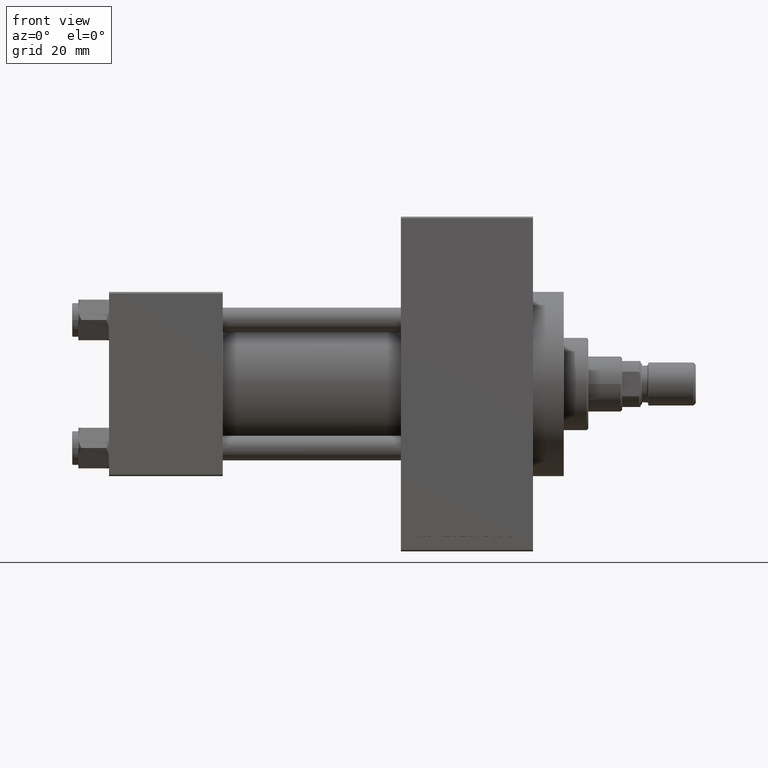
[diagram: clean part render]
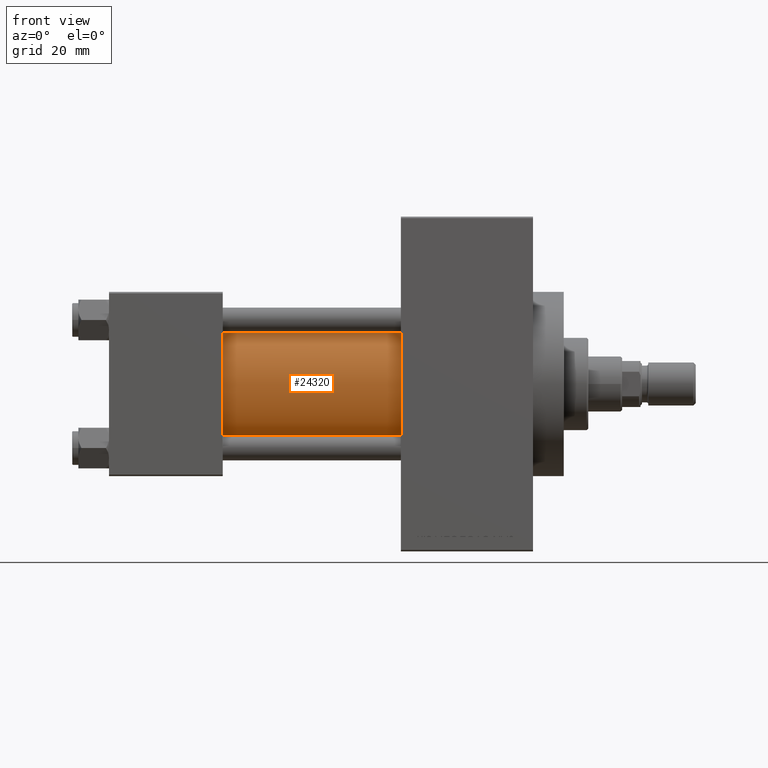
[diagram: same view with one face highlighted and labeled with its STEP entity id]
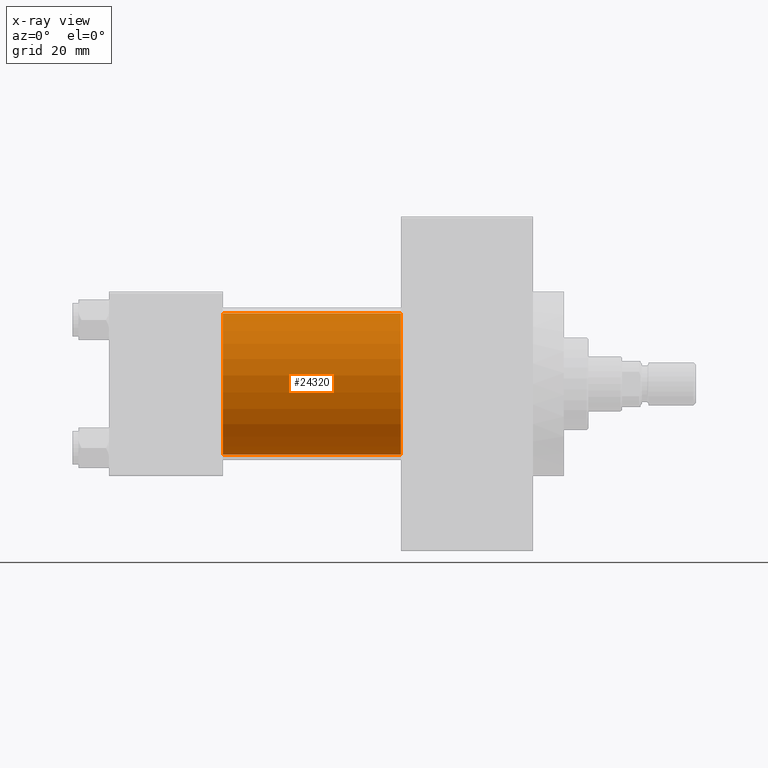
[diagram: x-ray of the same camera — body ghosted, the highlighted face saturated]
A machine part, front view. The second image highlights one B-rep face of the part: STEP entity #24320.
The next image is the same camera in x-ray: the body ghosted, the highlighted face saturated — about 0% of this face is hidden behind the body in this view.
In plain terms, the highlighted cylindrical surface (partial cylindrical patch) has radius 23 mm, axis along (-1, -0, -0).
Its self-contained STEP definition (entity closure, byte-faithful):
#343 = VERTEX_POINT ( 'NONE', #31273 ) ;
#633 = EDGE_LOOP ( 'NONE', ( #38055, #1993, #12463, #30962 ) ) ;
#1993 = ORIENTED_EDGE ( 'NONE', *, *, #26353, .F. ) ;
#2558 = EDGE_CURVE ( 'NONE', #25245, #11920, #2601, .T. ) ;
#2601 = LINE ( 'NONE', #39775, #11113 ) ;
#3130 = CARTESIAN_POINT ( 'NONE',  ( 95.00000000000000000, 2.146024240737012665E-16, -23.00000000000000000 ) ) ;
#4870 = CARTESIAN_POINT ( 'NONE',  ( 95.00000000000000000, -2.602085213965210642E-15, 23.00000000000000000 ) ) ;
#6562 = EDGE_CURVE ( 'NONE', #11920, #47039, #41299, .T. ) ;
#8769 = DIRECTION ( 'NONE',  ( 0.000000000000000000, 0.000000000000000000, 1.000000000000000000 ) ) ;
#9089 = CARTESIAN_POINT ( 'NONE',  ( 95.00000000000000000, -2.602085213965210642E-15, 0.000000000000000000 ) ) ;
#10568 = DIRECTION ( 'NONE',  ( 0.000000000000000000, 0.000000000000000000, 1.000000000000000000 ) ) ;
#11113 = VECTOR ( 'NONE', #16858, 1000.000000000000000 ) ;
#11920 = VERTEX_POINT ( 'NONE', #43727 ) ;
#12463 = ORIENTED_EDGE ( 'NONE', *, *, #2558, .T. ) ;
#13197 = EDGE_CURVE ( 'NONE', #343, #47039, #46335, .T. ) ;
#14082 = AXIS2_PLACEMENT_3D ( 'NONE', #9089, #39268, #27676 ) ;
#16858 = DIRECTION ( 'NONE',  ( -1.000000000000000000, -0.000000000000000000, -0.000000000000000000 ) ) ;
#16865 = DIRECTION ( 'NONE',  ( -1.000000000000000000, -0.000000000000000000, -0.000000000000000000 ) ) ;
#21523 = VECTOR ( 'NONE', #39111, 1000.000000000000000 ) ;
#24320 = ADVANCED_FACE ( 'NONE', ( #43640 ), #35457, .T. ) ;
#24346 = CARTESIAN_POINT ( 'NONE',  ( 95.00000000000000000, -2.602085213965210642E-15, 0.000000000000000000 ) ) ;
#25245 = VERTEX_POINT ( 'NONE', #4870 ) ;
#25592 = AXIS2_PLACEMENT_3D ( 'NONE', #24346, #16865, #10568 ) ;
#26353 = EDGE_CURVE ( 'NONE', #25245, #343, #37240, .T. ) ;
#27676 = DIRECTION ( 'NONE',  ( 0.000000000000000000, 0.000000000000000000, -1.000000000000000000 ) ) ;
#30962 = ORIENTED_EDGE ( 'NONE', *, *, #6562, .T. ) ;
#31273 = CARTESIAN_POINT ( 'NONE',  ( 95.00000000000000000, 2.146024240737012665E-16, -23.00000000000000000 ) ) ;
#31282 = AXIS2_PLACEMENT_3D ( 'NONE', #33892, #37271, #8769 ) ;
#33892 = CARTESIAN_POINT ( 'NONE',  ( 37.00000000000000000, -2.602085213965210642E-15, 0.000000000000000000 ) ) ;
#35457 = CYLINDRICAL_SURFACE ( 'NONE', #25592, 23.00000000000000000 ) ;
#37240 = CIRCLE ( 'NONE', #14082, 23.00000000000000000 ) ;
#37271 = DIRECTION ( 'NONE',  ( 1.000000000000000000, -0.000000000000000000, 0.000000000000000000 ) ) ;
#38055 = ORIENTED_EDGE ( 'NONE', *, *, #13197, .F. ) ;
#38404 = CARTESIAN_POINT ( 'NONE',  ( 37.00000000000000000, 2.146024240737012665E-16, -23.00000000000000000 ) ) ;
#39111 = DIRECTION ( 'NONE',  ( -1.000000000000000000, -0.000000000000000000, -0.000000000000000000 ) ) ;
#39268 = DIRECTION ( 'NONE',  ( 1.000000000000000000, 0.000000000000000000, 0.000000000000000000 ) ) ;
#39775 = CARTESIAN_POINT ( 'NONE',  ( 95.00000000000000000, -2.602085213965210642E-15, 23.00000000000000000 ) ) ;
#41299 = CIRCLE ( 'NONE', #31282, 23.00000000000000000 ) ;
#43640 = FACE_OUTER_BOUND ( 'NONE', #633, .T. ) ;
#43727 = CARTESIAN_POINT ( 'NONE',  ( 37.00000000000000000, -2.602085213965210642E-15, 23.00000000000000000 ) ) ;
#46335 = LINE ( 'NONE', #3130, #21523 ) ;
#47039 = VERTEX_POINT ( 'NONE', #38404 ) ;